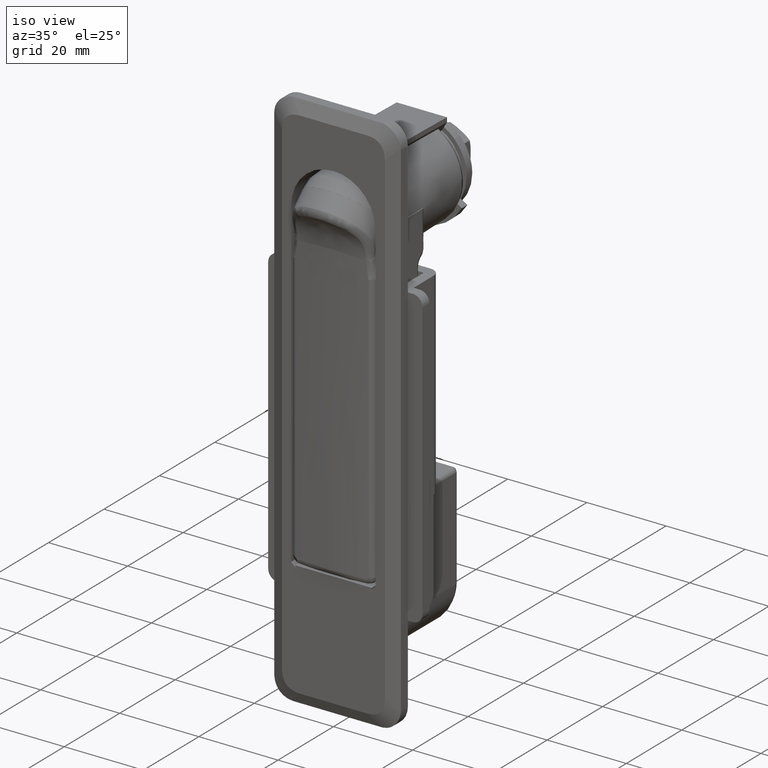
[diagram: clean part render]
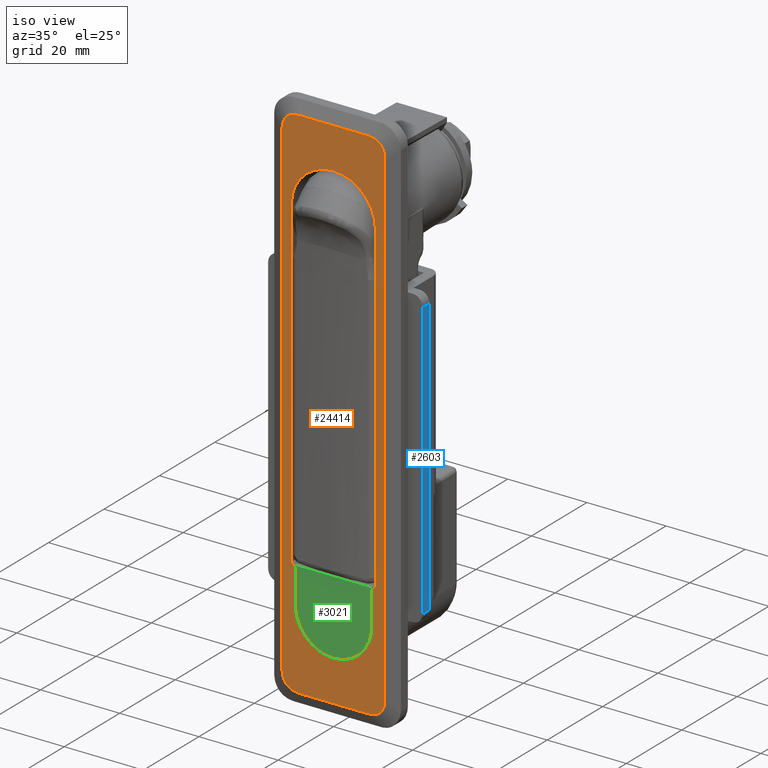
[diagram: same view with three faces highlighted in distinct colors, each labeled with its STEP entity id]
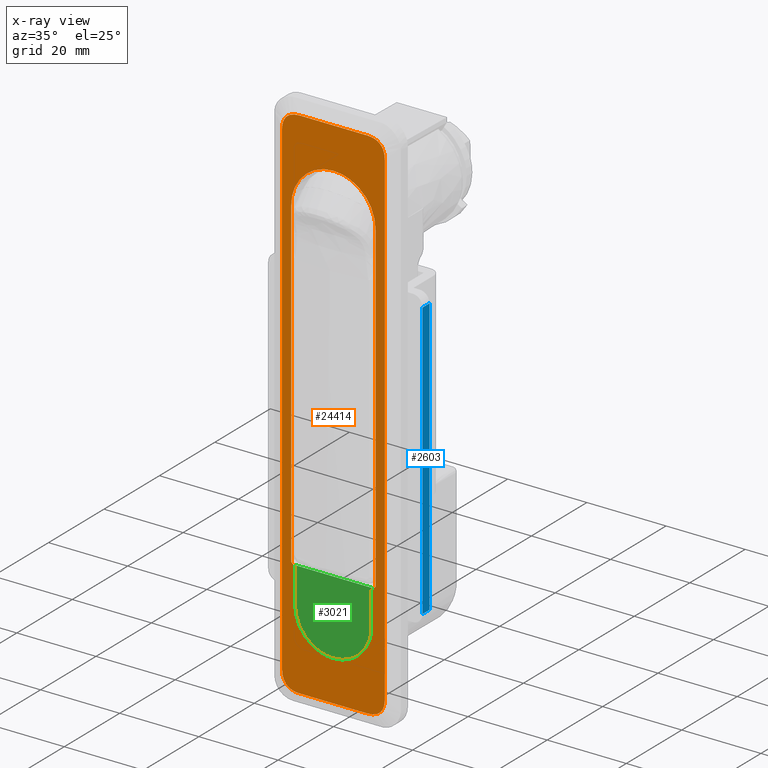
[diagram: x-ray of the same camera — body ghosted, the three highlighted faces saturated]
A machine part, iso view with three faces highlighted in distinct colors.
The next image is the same camera in x-ray (body ghosted, the three faces saturated) — at least one of them is partly hidden behind the body in this view.
Their STEP definitions:

[orange] entity #24414 — the highlighted face is a freeform B-spline surface patch.
#21278=CARTESIAN_POINT('',(0.0,-10.650000000000000,0.0));
#21279=VERTEX_POINT('',#21278);
#21280=CARTESIAN_POINT('',(0.0,0.000002612876134,10.649999999999681));
#21281=VERTEX_POINT('',#21280);
#21282=CARTESIAN_POINT('',(0.0,-10.650000000000000,0.0));
#21283=CARTESIAN_POINT('',(0.0,-10.650697652502251,1.132790097301300));
#21284=CARTESIAN_POINT('',(0.0,-10.355171660177071,2.962076732501115));
#21285=CARTESIAN_POINT('',(0.0,-9.397079197579412,5.123117261053189));
#21286=CARTESIAN_POINT('',(0.0,-8.402023735550388,6.612251551277997));
#21287=CARTESIAN_POINT('',(0.0,-7.131548436770145,7.996998637823951));
#21288=CARTESIAN_POINT('',(0.0,-5.441715296023170,9.250338741107843));
#21289=CARTESIAN_POINT('',(0.0,-3.005617190563364,10.348127164452849));
#21290=CARTESIAN_POINT('',(0.0,-1.132782695475737,10.650691895161980));
#21291=CARTESIAN_POINT('',(0.0,0.000002612876134,10.649999999999681));
#21292=B_SPLINE_CURVE_WITH_KNOTS('',3,(#21282,#21283,#21284,#21285,#21286,#21287,#21288,#21289,#21290,#21291),.UNSPECIFIED.,.F.,.U.,(4,1,1,1,1,1,1,4),(0.000000132243098,3.398097049687262,5.489252960635048,7.057589349876654,8.756577258297108,11.109136684113370,13.331003035079430,16.729087320293790),.UNSPECIFIED.);
#21293=EDGE_CURVE('',#21279,#21281,#21292,.T.);
#21295=CARTESIAN_POINT('',(0.0,10.650000000000000,1.304206E-015));
#21296=VERTEX_POINT('',#21295);
#21297=CARTESIAN_POINT('',(0.0,0.000002612876134,10.649999999999681));
#21298=CARTESIAN_POINT('',(0.0,1.132777575391115,10.650626814978770));
#21299=CARTESIAN_POINT('',(0.0,2.962102982589637,10.355248515930670));
#21300=CARTESIAN_POINT('',(0.0,5.043078541469104,9.432534761739948));
#21301=CARTESIAN_POINT('',(0.0,6.469921123141639,8.504261249496080));
#21302=CARTESIAN_POINT('',(0.0,7.589068132430842,7.526813312557239));
#21303=CARTESIAN_POINT('',(0.0,8.806815915885995,6.097697047478490));
#21304=CARTESIAN_POINT('',(0.0,9.833990704752070,4.310288773548606));
#21305=CARTESIAN_POINT('',(0.0,10.508375545705171,2.134654863833136));
#21306=CARTESIAN_POINT('',(0.0,10.650079962931310,0.697033883396572));
#21307=CARTESIAN_POINT('',(0.0,10.650000000000000,1.304206E-015));
#21308=B_SPLINE_CURVE_WITH_KNOTS('',3,(#21297,#21298,#21299,#21300,#21301,#21302,#21303,#21304,#21305,#21306,#21307),.UNSPECIFIED.,.F.,.U.,(4,1,1,1,1,1,1,1,4),(0.000000133155503,3.398096451915242,5.489251994984326,6.796228803007031,8.495199355316368,9.932853159622917,12.416116200980600,14.637980113269871,16.729084374954951),.UNSPECIFIED.);
#21309=EDGE_CURVE('',#21281,#21296,#21308,.T.);
#22452=CARTESIAN_POINT('',(0.0,-10.650000000000000,-81.500000000000000));
#22453=VERTEX_POINT('',#22452);
#22454=CARTESIAN_POINT('',(0.0,-10.650000000000000,-81.500000000000000));
#22455=CARTESIAN_POINT('',(0.0,-10.650000000000000,0.0));
#22456=QUASI_UNIFORM_CURVE('',1,(#22454,#22455),.UNSPECIFIED.,.F.,.U.);
#22457=EDGE_CURVE('',#22453,#21279,#22456,.T.);
#22486=CARTESIAN_POINT('',(0.0,-9.650000000000000,-82.500000000000000));
#22487=VERTEX_POINT('',#22486);
#22488=CARTESIAN_POINT('',(0.0,-9.650000000000000,-82.500000000000000));
#22489=CARTESIAN_POINT('',(0.0,-10.650000000000000,-81.500000000000000));
#22490=QUASI_UNIFORM_CURVE('',1,(#22488,#22489),.UNSPECIFIED.,.F.,.U.);
#22491=EDGE_CURVE('',#22487,#22453,#22490,.T.);
#22508=CARTESIAN_POINT('',(0.0,-9.650000000000000,-91.0));
#22509=VERTEX_POINT('',#22508);
#22510=CARTESIAN_POINT('',(0.0,-9.650000000000000,-91.0));
#22511=CARTESIAN_POINT('',(0.0,-9.650000000000000,-82.500000000000000));
#22512=QUASI_UNIFORM_CURVE('',1,(#22510,#22511),.UNSPECIFIED.,.F.,.U.);
#22513=EDGE_CURVE('',#22509,#22487,#22512,.T.);
#22543=CARTESIAN_POINT('',(0.0,9.650000000000000,-91.0));
#22544=VERTEX_POINT('',#22543);
#22545=CARTESIAN_POINT('',(0.0,-0.000001337969715,-100.649999999999910));
#22546=VERTEX_POINT('',#22545);
#22547=CARTESIAN_POINT('',(0.0,9.650000000000000,-91.0));
#22548=CARTESIAN_POINT('',(0.0,9.650176580185789,-91.750028596284693));
#22549=CARTESIAN_POINT('',(0.0,9.501943473000557,-93.013128706859035));
#22550=CARTESIAN_POINT('',(0.0,8.953343464240842,-94.708595776826428));
#22551=CARTESIAN_POINT('',(0.0,8.250467592550006,-96.083803146592032));
#22552=CARTESIAN_POINT('',(0.0,7.151116571246947,-97.585710791153943));
#22553=CARTESIAN_POINT('',(0.0,5.757295484975140,-98.833377281962612));
#22554=CARTESIAN_POINT('',(0.0,4.006126554771896,-99.839563889677322));
#22555=CARTESIAN_POINT('',(0.0,2.171031365830974,-100.483463005998400));
#22556=CARTESIAN_POINT('',(0.0,0.750026262167700,-100.650173680634500));
#22557=CARTESIAN_POINT('',(0.0,-0.000001337969715,-100.649999999999910));
#22558=B_SPLINE_CURVE_WITH_KNOTS('',3,(#22547,#22548,#22549,#22550,#22551,#22552,#22553,#22554,#22555,#22556,#22557),.UNSPECIFIED.,.F.,.U.,(4,1,1,1,1,1,1,1,4),(0.000000156102073,2.250052167393193,3.789570636072790,5.329093170939460,6.868648771872033,9.355484953625201,10.895005627256410,12.908229174539240,15.158280418859031),.UNSPECIFIED.);
#22559=EDGE_CURVE('',#22544,#22546,#22558,.T.);
#22561=CARTESIAN_POINT('',(0.0,-0.000001337969715,-100.649999999999910));
#22562=CARTESIAN_POINT('',(0.0,-0.750031323444230,-100.650177349193400));
#22563=CARTESIAN_POINT('',(0.0,-2.013126517613620,-100.501940436359400));
#22564=CARTESIAN_POINT('',(0.0,-3.708590069189121,-99.953334849222117));
#22565=CARTESIAN_POINT('',(0.0,-5.260201808868077,-99.160460625275164));
#22566=CARTESIAN_POINT('',(0.0,-6.512556055396554,-98.183093832180958));
#22567=CARTESIAN_POINT('',(0.0,-7.635136215278456,-96.959575574315963));
#22568=CARTESIAN_POINT('',(0.0,-8.524215285431433,-95.646626030626834));
#22569=CARTESIAN_POINT('',(0.0,-9.399414766172280,-93.605028604354942));
#22570=CARTESIAN_POINT('',(0.0,-9.650539227521923,-91.986931959893141));
#22571=CARTESIAN_POINT('',(0.0,-9.650000000000000,-91.0));
#22572=B_SPLINE_CURVE_WITH_KNOTS('',3,(#22561,#22562,#22563,#22564,#22565,#22566,#22567,#22568,#22569,#22570,#22571),.UNSPECIFIED.,.F.,.U.,(4,1,1,1,1,1,1,1,4),(0.000000156563150,2.250051944095182,3.789570259426178,5.329092640662090,7.460761363749977,8.526526751928891,10.302890068719490,12.197692125843240,15.158278910645720),.UNSPECIFIED.);
#22573=EDGE_CURVE('',#22546,#22509,#22572,.T.);
#22591=CARTESIAN_POINT('',(0.0,9.650000000000000,-82.500000000000000));
#22592=VERTEX_POINT('',#22591);
#22593=CARTESIAN_POINT('',(0.0,9.650000000000000,-82.500000000000000));
#22594=CARTESIAN_POINT('',(0.0,9.650000000000000,-91.0));
#22595=QUASI_UNIFORM_CURVE('',1,(#22593,#22594),.UNSPECIFIED.,.F.,.U.);
#22596=EDGE_CURVE('',#22592,#22544,#22595,.T.);
#22613=CARTESIAN_POINT('',(0.0,10.650000000000000,-81.500000000000000));
#22614=VERTEX_POINT('',#22613);
#22615=CARTESIAN_POINT('',(0.0,10.650000000000000,-81.500000000000000));
#22616=CARTESIAN_POINT('',(0.0,9.650000000000000,-82.500000000000000));
#22617=QUASI_UNIFORM_CURVE('',1,(#22615,#22616),.UNSPECIFIED.,.F.,.U.);
#22618=EDGE_CURVE('',#22614,#22592,#22617,.T.);
#22635=CARTESIAN_POINT('',(0.0,10.650000000000000,1.304206E-015));
#22636=CARTESIAN_POINT('',(0.0,10.650000000000000,-81.500000000000000));
#22637=QUASI_UNIFORM_CURVE('',1,(#22635,#22636),.UNSPECIFIED.,.F.,.U.);
#22638=EDGE_CURVE('',#21296,#22614,#22637,.T.);
#23714=CARTESIAN_POINT('',(0.0,-8.527864045000278,21.0));
#23715=VERTEX_POINT('',#23714);
#23721=CARTESIAN_POINT('',(1.591988E-015,-13.0,16.527864045000602));
#23722=VERTEX_POINT('',#23721);
#23723=CARTESIAN_POINT('',(-2.501727E-014,-13.000000000000030,16.527864045000570));
#23724=CARTESIAN_POINT('',(-2.501727E-014,-13.000000000000073,21.000000000000199));
#23725=CARTESIAN_POINT('',(0.0,-8.527864045000278,21.0));
#23733=(BOUNDED_CURVE()B_SPLINE_CURVE(2,(#23723,#23724,#23725),.UNSPECIFIED.,.F.,.U.)CURVE()GEOMETRIC_REPRESENTATION_ITEM()QUASI_UNIFORM_CURVE()RATIONAL_B_SPLINE_CURVE((1.0,0.948683298050515,1.0))REPRESENTATION_ITEM(''));
#23734=EDGE_CURVE('',#23722,#23715,#23733,.T.);
#23758=CARTESIAN_POINT('',(0.0,8.527864045000278,21.0));
#23759=VERTEX_POINT('',#23758);
#23760=CARTESIAN_POINT('',(-1.591988E-015,13.0,16.527864045000399));
#23761=VERTEX_POINT('',#23760);
#23762=CARTESIAN_POINT('',(0.0,8.527864045000278,21.0));
#23763=CARTESIAN_POINT('',(-2.738303E-015,13.000000000000020,21.000000000000281));
#23764=CARTESIAN_POINT('',(-2.738303E-015,13.000000000000011,16.527864045000420));
#23772=(BOUNDED_CURVE()B_SPLINE_CURVE(2,(#23762,#23763,#23764),.UNSPECIFIED.,.F.,.U.)CURVE()GEOMETRIC_REPRESENTATION_ITEM()QUASI_UNIFORM_CURVE()RATIONAL_B_SPLINE_CURVE((1.0,0.948683298050510,1.0))REPRESENTATION_ITEM(''));
#23773=EDGE_CURVE('',#23759,#23761,#23772,.T.);
#23876=CARTESIAN_POINT('',(0.0,8.527864045000609,-111.0));
#23877=VERTEX_POINT('',#23876);
#23883=CARTESIAN_POINT('',(-1.591988E-015,13.0,-106.527864045000400));
#23884=VERTEX_POINT('',#23883);
#23885=CARTESIAN_POINT('',(-3.049388E-014,13.000000000000121,-106.527864045000300));
#23886=CARTESIAN_POINT('',(-3.049388E-014,13.000000000000171,-111.000000000000060));
#23887=CARTESIAN_POINT('',(-2.994622E-014,8.527864045000699,-111.000000000000100));
#23895=(BOUNDED_CURVE()B_SPLINE_CURVE(2,(#23885,#23886,#23887),.UNSPECIFIED.,.F.,.U.)CURVE()GEOMETRIC_REPRESENTATION_ITEM()QUASI_UNIFORM_CURVE()RATIONAL_B_SPLINE_CURVE((1.0,0.948683298050513,1.0))REPRESENTATION_ITEM(''));
#23896=EDGE_CURVE('',#23884,#23877,#23895,.T.);
#23920=CARTESIAN_POINT('',(0.0,-8.527864045000390,-111.0));
#23921=VERTEX_POINT('',#23920);
#23922=CARTESIAN_POINT('',(1.591988E-015,-13.0,-106.527864045000400));
#23923=VERTEX_POINT('',#23922);
#23924=CARTESIAN_POINT('',(2.994622E-014,-8.527864045000287,-111.000000000000100));
#23925=CARTESIAN_POINT('',(3.049388E-014,-13.000000000000080,-111.000000000000240));
#23926=CARTESIAN_POINT('',(3.049388E-014,-13.000000000000050,-106.527864045000500));
#23934=(BOUNDED_CURVE()B_SPLINE_CURVE(2,(#23924,#23925,#23926),.UNSPECIFIED.,.F.,.U.)CURVE()GEOMETRIC_REPRESENTATION_ITEM()QUASI_UNIFORM_CURVE()RATIONAL_B_SPLINE_CURVE((1.0,0.948683298050514,1.0))REPRESENTATION_ITEM(''));
#23935=EDGE_CURVE('',#23921,#23923,#23934,.T.);
#24244=CARTESIAN_POINT('',(0.0,8.527864045000278,21.0));
#24245=CARTESIAN_POINT('',(0.0,-8.527864045000278,21.0));
#24246=QUASI_UNIFORM_CURVE('',1,(#24244,#24245),.UNSPECIFIED.,.F.,.U.);
#24247=EDGE_CURVE('',#23759,#23715,#24246,.T.);
#24266=CARTESIAN_POINT('',(0.0,8.527864045000609,-111.0));
#24267=CARTESIAN_POINT('',(0.0,-8.527864045000390,-111.0));
#24268=QUASI_UNIFORM_CURVE('',1,(#24266,#24267),.UNSPECIFIED.,.F.,.U.);
#24269=EDGE_CURVE('',#23877,#23921,#24268,.T.);
#24379=CARTESIAN_POINT('',(-1.591988E-015,14.298699949606959,-117.593399744158400));
#24380=CARTESIAN_POINT('',(-1.591988E-015,-14.298700646981301,-117.593399744158400));
#24381=CARTESIAN_POINT('',(-1.591988E-015,14.298699949606959,27.593403284674281));
#24382=CARTESIAN_POINT('',(-1.591988E-015,-14.298700646981301,27.593403284674281));
#24383=B_SPLINE_SURFACE_WITH_KNOTS('',1,1,((#24379,#24381),(#24380,#24382)),.UNSPECIFIED.,.F.,.F.,.U.,(2,2),(2,2),(0.0,28.597400596588258),(0.0,145.186803028832710),.UNSPECIFIED.);
#24384=ORIENTED_EDGE('',*,*,#24269,.T.);
#24385=ORIENTED_EDGE('',*,*,#23935,.T.);
#24386=CARTESIAN_POINT('',(1.591988E-015,-13.0,-106.527864045000400));
#24387=CARTESIAN_POINT('',(1.591988E-015,-13.0,16.527864045000602));
#24388=QUASI_UNIFORM_CURVE('',1,(#24386,#24387),.UNSPECIFIED.,.F.,.U.);
#24389=EDGE_CURVE('',#23923,#23722,#24388,.T.);
#24390=ORIENTED_EDGE('',*,*,#24389,.T.);
#24391=ORIENTED_EDGE('',*,*,#23734,.T.);
#24392=ORIENTED_EDGE('',*,*,#24247,.F.);
#24393=ORIENTED_EDGE('',*,*,#23773,.T.);
#24394=CARTESIAN_POINT('',(-1.591988E-015,13.0,-106.527864045000400));
#24395=CARTESIAN_POINT('',(-1.591988E-015,13.0,16.527864045000399));
#24396=QUASI_UNIFORM_CURVE('',1,(#24394,#24395),.UNSPECIFIED.,.F.,.U.);
#24397=EDGE_CURVE('',#23884,#23761,#24396,.T.);
#24398=ORIENTED_EDGE('',*,*,#24397,.F.);
#24399=ORIENTED_EDGE('',*,*,#23896,.T.);
#24400=EDGE_LOOP('',(#24384,#24385,#24390,#24391,#24392,#24393,#24398,#24399));
#24401=FACE_OUTER_BOUND('',#24400,.T.);
#24402=ORIENTED_EDGE('',*,*,#22457,.F.);
#24403=ORIENTED_EDGE('',*,*,#22491,.F.);
#24404=ORIENTED_EDGE('',*,*,#22513,.F.);
#24405=ORIENTED_EDGE('',*,*,#22573,.F.);
#24406=ORIENTED_EDGE('',*,*,#22559,.F.);
#24407=ORIENTED_EDGE('',*,*,#22596,.F.);
#24408=ORIENTED_EDGE('',*,*,#22618,.F.);
#24409=ORIENTED_EDGE('',*,*,#22638,.F.);
#24410=ORIENTED_EDGE('',*,*,#21309,.F.);
#24411=ORIENTED_EDGE('',*,*,#21293,.F.);
#24412=EDGE_LOOP('',(#24402,#24403,#24404,#24405,#24406,#24407,#24408,#24409,#24410,#24411));
#24413=FACE_BOUND('',#24412,.T.);
#24414=ADVANCED_FACE('',(#24401,#24413),#24383,.T.);

[blue] entity #2603 — the highlighted face is a freeform B-spline surface patch.
#2033=CARTESIAN_POINT('',(4.300000000000000,-19.500000000000000,-87.0));
#2034=VERTEX_POINT('',#2033);
#2054=CARTESIAN_POINT('',(6.800000000000000,-19.500000000000000,-87.0));
#2055=VERTEX_POINT('',#2054);
#2067=CARTESIAN_POINT('',(4.300000000000000,-19.500000000000000,-87.0));
#2068=CARTESIAN_POINT('',(6.800000000000000,-19.500000000000000,-87.0));
#2069=QUASI_UNIFORM_CURVE('',1,(#2067,#2068),.UNSPECIFIED.,.F.,.U.);
#2070=EDGE_CURVE('',#2034,#2055,#2069,.T.);
#2204=CARTESIAN_POINT('',(4.300000000000000,-19.500000000000000,-17.0));
#2205=VERTEX_POINT('',#2204);
#2219=CARTESIAN_POINT('',(6.800000000000000,-19.500000000000000,-17.0));
#2220=VERTEX_POINT('',#2219);
#2221=CARTESIAN_POINT('',(6.800000000000000,-19.500000000000000,-17.0));
#2222=CARTESIAN_POINT('',(4.300000000000000,-19.500000000000000,-17.0));
#2223=QUASI_UNIFORM_CURVE('',1,(#2221,#2222),.UNSPECIFIED.,.F.,.U.);
#2224=EDGE_CURVE('',#2220,#2205,#2223,.T.);
#2573=CARTESIAN_POINT('',(6.800000000000000,-19.500000000000000,-87.0));
#2574=CARTESIAN_POINT('',(6.800000000000000,-19.500000000000000,-17.0));
#2575=QUASI_UNIFORM_CURVE('',1,(#2573,#2574),.UNSPECIFIED.,.F.,.U.);
#2576=EDGE_CURVE('',#2055,#2220,#2575,.T.);
#2588=CARTESIAN_POINT('',(4.175125183659419,-19.500000000000000,-13.503500135673580));
#2589=CARTESIAN_POINT('',(4.175125183659419,-19.500000000000000,-90.496501741872748));
#2590=CARTESIAN_POINT('',(6.924875241023675,-19.500000000000000,-13.503500135673580));
#2591=CARTESIAN_POINT('',(6.924875241023675,-19.500000000000000,-90.496501741872748));
#2592=B_SPLINE_SURFACE_WITH_KNOTS('',1,1,((#2588,#2590),(#2589,#2591)),.UNSPECIFIED.,.F.,.F.,.U.,(2,2),(2,2),(0.0,76.993001606199172),(0.0,2.749750057364256),.UNSPECIFIED.);
#2593=ORIENTED_EDGE('',*,*,#2576,.T.);
#2594=ORIENTED_EDGE('',*,*,#2224,.T.);
#2595=CARTESIAN_POINT('',(4.300000000000000,-19.500000000000000,-87.0));
#2596=CARTESIAN_POINT('',(4.300000000000000,-19.500000000000000,-17.0));
#2597=QUASI_UNIFORM_CURVE('',1,(#2595,#2596),.UNSPECIFIED.,.F.,.U.);
#2598=EDGE_CURVE('',#2034,#2205,#2597,.T.);
#2599=ORIENTED_EDGE('',*,*,#2598,.F.);
#2600=ORIENTED_EDGE('',*,*,#2070,.T.);
#2601=EDGE_LOOP('',(#2593,#2594,#2599,#2600));
#2602=FACE_OUTER_BOUND('',#2601,.T.);
#2603=ADVANCED_FACE('',(#2602),#2592,.T.);

[green] entity #3021 — the highlighted face is a freeform B-spline surface patch.
#2961=CARTESIAN_POINT('',(0.0,10.614034531290519,-81.068432469516395));
#2962=CARTESIAN_POINT('',(0.0,-10.614034013624179,-81.068432469516395));
#2963=CARTESIAN_POINT('',(0.0,10.614034531290519,-101.581569364667400));
#2964=CARTESIAN_POINT('',(0.0,-10.614034013624179,-101.581569364667400));
#2965=B_SPLINE_SURFACE_WITH_KNOTS('',1,1,((#2961,#2963),(#2962,#2964)),.UNSPECIFIED.,.F.,.F.,.U.,(2,2),(2,2),(0.0,21.228068544914699),(0.0,20.513136895151021),.UNSPECIFIED.);
#2966=CARTESIAN_POINT('',(0.0,9.650000000000000,-91.0));
#2967=VERTEX_POINT('',#2966);
#2968=CARTESIAN_POINT('',(0.0,9.650000000000000,-82.0));
#2969=VERTEX_POINT('',#2968);
#2970=CARTESIAN_POINT('',(0.0,9.650000000000000,-91.0));
#2971=CARTESIAN_POINT('',(0.0,9.650000000000000,-82.0));
#2972=QUASI_UNIFORM_CURVE('',1,(#2970,#2971),.UNSPECIFIED.,.F.,.U.);
#2973=EDGE_CURVE('',#2967,#2969,#2972,.T.);
#2974=ORIENTED_EDGE('',*,*,#2973,.F.);
#2975=CARTESIAN_POINT('',(0.0,-0.000001337969715,-100.649999999999910));
#2976=VERTEX_POINT('',#2975);
#2977=CARTESIAN_POINT('',(0.0,9.650000000000000,-91.0));
#2978=CARTESIAN_POINT('',(0.0,9.650176580185789,-91.750028596284693));
#2979=CARTESIAN_POINT('',(0.0,9.501943473000557,-93.013128706859035));
#2980=CARTESIAN_POINT('',(0.0,8.953343464240842,-94.708595776826428));
#2981=CARTESIAN_POINT('',(0.0,8.250467592550006,-96.083803146592032));
#2982=CARTESIAN_POINT('',(0.0,7.151116571246947,-97.585710791153943));
#2983=CARTESIAN_POINT('',(0.0,5.757295484975140,-98.833377281962612));
#2984=CARTESIAN_POINT('',(0.0,4.006126554771896,-99.839563889677322));
#2985=CARTESIAN_POINT('',(0.0,2.171031365830974,-100.483463005998400));
#2986=CARTESIAN_POINT('',(0.0,0.750026262167700,-100.650173680634500));
#2987=CARTESIAN_POINT('',(0.0,-0.000001337969715,-100.649999999999910));
#2988=B_SPLINE_CURVE_WITH_KNOTS('',3,(#2977,#2978,#2979,#2980,#2981,#2982,#2983,#2984,#2985,#2986,#2987),.UNSPECIFIED.,.F.,.U.,(4,1,1,1,1,1,1,1,4),(0.000000156102073,2.250052167393193,3.789570636072790,5.329093170939460,6.868648771872033,9.355484953625201,10.895005627256410,12.908229174539240,15.158280418859031),.UNSPECIFIED.);
#2989=EDGE_CURVE('',#2967,#2976,#2988,.T.);
#2990=ORIENTED_EDGE('',*,*,#2989,.T.);
#2991=CARTESIAN_POINT('',(0.0,-9.650000000000000,-91.0));
#2992=VERTEX_POINT('',#2991);
#2993=CARTESIAN_POINT('',(0.0,-0.000001337969715,-100.649999999999910));
#2994=CARTESIAN_POINT('',(0.0,-0.750031323444230,-100.650177349193400));
#2995=CARTESIAN_POINT('',(0.0,-2.013126517613620,-100.501940436359400));
#2996=CARTESIAN_POINT('',(0.0,-3.708590069189121,-99.953334849222117));
#2997=CARTESIAN_POINT('',(0.0,-5.260201808868077,-99.160460625275164));
#2998=CARTESIAN_POINT('',(0.0,-6.512556055396554,-98.183093832180958));
#2999=CARTESIAN_POINT('',(0.0,-7.635136215278456,-96.959575574315963));
#3000=CARTESIAN_POINT('',(0.0,-8.524215285431433,-95.646626030626834));
#3001=CARTESIAN_POINT('',(0.0,-9.399414766172280,-93.605028604354942));
#3002=CARTESIAN_POINT('',(0.0,-9.650539227521923,-91.986931959893141));
#3003=CARTESIAN_POINT('',(0.0,-9.650000000000000,-91.0));
#3004=B_SPLINE_CURVE_WITH_KNOTS('',3,(#2993,#2994,#2995,#2996,#2997,#2998,#2999,#3000,#3001,#3002,#3003),.UNSPECIFIED.,.F.,.U.,(4,1,1,1,1,1,1,1,4),(0.000000156563150,2.250051944095182,3.789570259426178,5.329092640662090,7.460761363749977,8.526526751928891,10.302890068719490,12.197692125843240,15.158278910645720),.UNSPECIFIED.);
#3005=EDGE_CURVE('',#2976,#2992,#3004,.T.);
#3006=ORIENTED_EDGE('',*,*,#3005,.T.);
#3007=CARTESIAN_POINT('',(0.0,-9.650000000000000,-82.0));
#3008=VERTEX_POINT('',#3007);
#3009=CARTESIAN_POINT('',(0.0,-9.650000000000000,-82.0));
#3010=CARTESIAN_POINT('',(0.0,-9.650000000000000,-91.0));
#3011=QUASI_UNIFORM_CURVE('',1,(#3009,#3010),.UNSPECIFIED.,.F.,.U.);
#3012=EDGE_CURVE('',#3008,#2992,#3011,.T.);
#3013=ORIENTED_EDGE('',*,*,#3012,.F.);
#3014=CARTESIAN_POINT('',(0.0,9.650000000000000,-82.0));
#3015=CARTESIAN_POINT('',(0.0,-9.650000000000000,-82.0));
#3016=QUASI_UNIFORM_CURVE('',1,(#3014,#3015),.UNSPECIFIED.,.F.,.U.);
#3017=EDGE_CURVE('',#2969,#3008,#3016,.T.);
#3018=ORIENTED_EDGE('',*,*,#3017,.F.);
#3019=EDGE_LOOP('',(#2974,#2990,#3006,#3013,#3018));
#3020=FACE_OUTER_BOUND('',#3019,.T.);
#3021=ADVANCED_FACE('',(#3020),#2965,.F.);